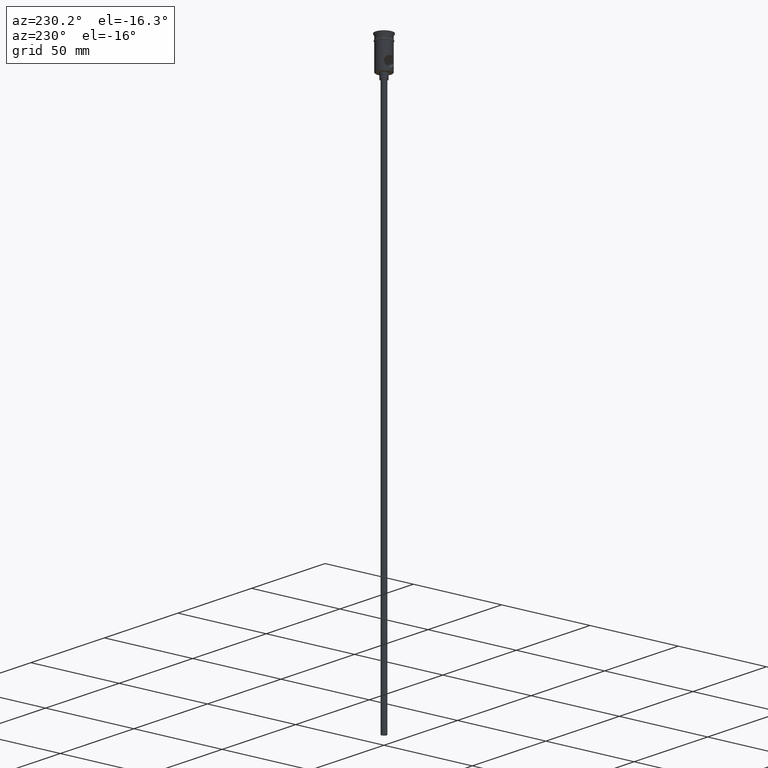
[diagram: clean part render]
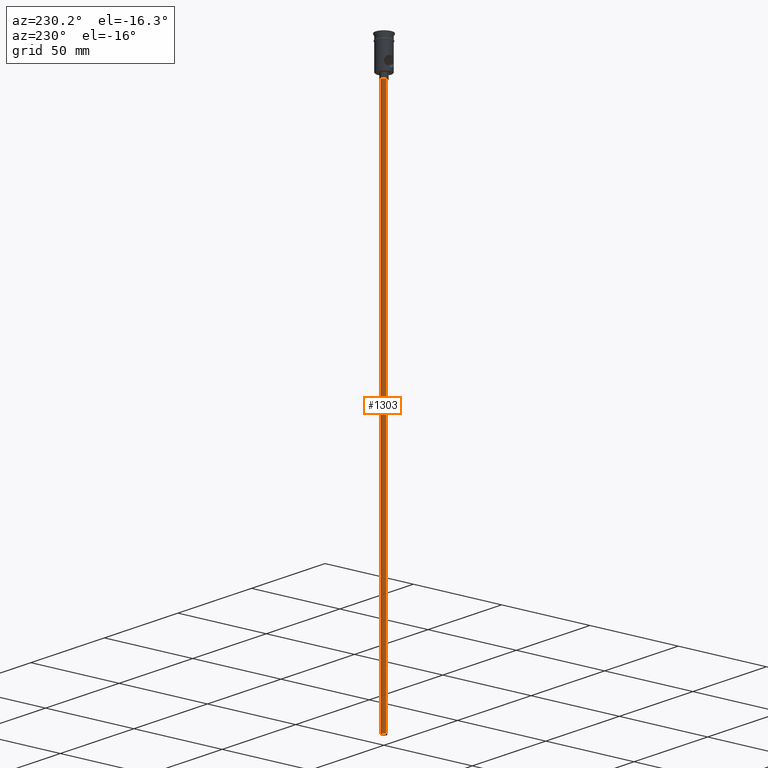
[diagram: same view with one face highlighted and labeled with its STEP entity id]
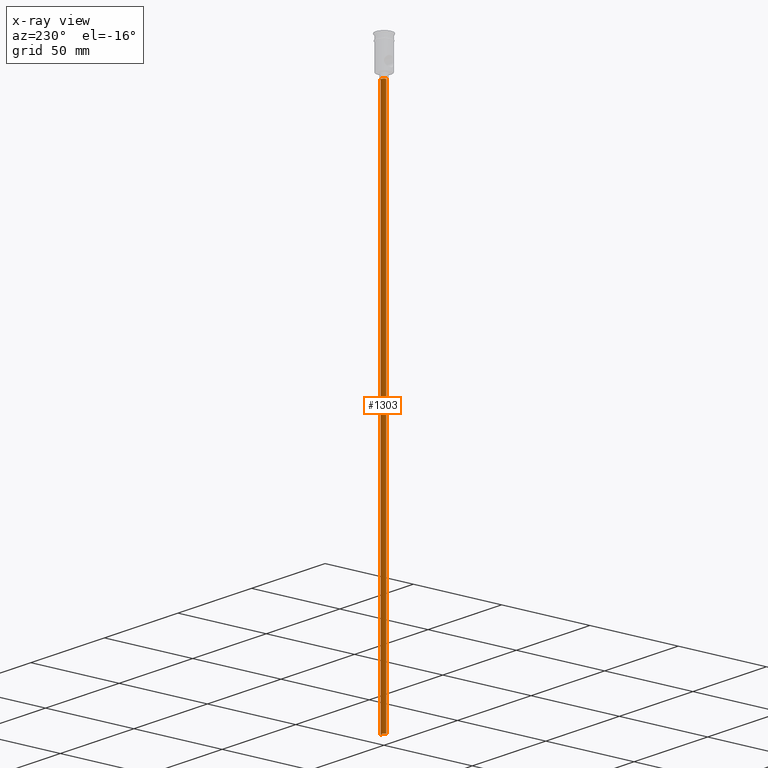
[diagram: x-ray of the same camera — body ghosted, the highlighted face saturated]
A machine part, auxiliary view. The second image highlights one B-rep face of the part: STEP entity #1303.
The next image is the same camera in x-ray: the body ghosted, the highlighted face saturated — about 0% of this face is hidden behind the body in this view.
In plain terms, the highlighted cylindrical surface (edge-blend (fillet) strip) has radius 1.5 mm, axis along (-0, -0, 1).
Its self-contained STEP definition (entity closure, byte-faithful):
#2 = CARTESIAN_POINT ( 'NONE',  ( -1.500000000000000222, 1.836970198721030181E-16, -318.0000000000000000 ) ) ;
#24 = DIRECTION ( 'NONE',  ( -1.000000000000000000, 0.000000000000000000, 0.000000000000000000 ) ) ;
#32 = CARTESIAN_POINT ( 'NONE',  ( 0.000000000000000000, 0.000000000000000000, -20.99999999999999645 ) ) ;
#61 = DIRECTION ( 'NONE',  ( -0.000000000000000000, -0.000000000000000000, 1.000000000000000000 ) ) ;
#67 = VECTOR ( 'NONE', #841, 1000.000000000000000 ) ;
#82 = CARTESIAN_POINT ( 'NONE',  ( -1.500000000000000222, 1.836970198721030181E-16, -20.99999999999999645 ) ) ;
#117 = CARTESIAN_POINT ( 'NONE',  ( 1.500000000000000222, 0.000000000000000000, -20.99999999999999645 ) ) ;
#128 = CARTESIAN_POINT ( 'NONE',  ( 0.000000000000000000, 0.000000000000000000, -318.0000000000000000 ) ) ;
#158 = ORIENTED_EDGE ( 'NONE', *, *, #722, .T. ) ;
#183 = EDGE_CURVE ( 'NONE', #1396, #553, #1288, .T. ) ;
#243 = DIRECTION ( 'NONE',  ( 0.000000000000000000, 0.000000000000000000, -1.000000000000000000 ) ) ;
#280 = EDGE_LOOP ( 'NONE', ( #492, #592, #158, #295 ) ) ;
#295 = ORIENTED_EDGE ( 'NONE', *, *, #828, .F. ) ;
#297 = CARTESIAN_POINT ( 'NONE',  ( 0.000000000000000000, 0.000000000000000000, -318.0000000000000000 ) ) ;
#381 = VECTOR ( 'NONE', #61, 1000.000000000000000 ) ;
#388 = LINE ( 'NONE', #1276, #67 ) ;
#492 = ORIENTED_EDGE ( 'NONE', *, *, #183, .F. ) ;
#553 = VERTEX_POINT ( 'NONE', #988 ) ;
#589 = AXIS2_PLACEMENT_3D ( 'NONE', #32, #890, #24 ) ;
#592 = ORIENTED_EDGE ( 'NONE', *, *, #1202, .T. ) ;
#594 = CARTESIAN_POINT ( 'NONE',  ( 1.500000000000000222, 0.000000000000000000, -318.0000000000000000 ) ) ;
#722 = EDGE_CURVE ( 'NONE', #1316, #1133, #1426, .T. ) ;
#783 = DIRECTION ( 'NONE',  ( -1.000000000000000000, 0.000000000000000000, 0.000000000000000000 ) ) ;
#828 = EDGE_CURVE ( 'NONE', #553, #1133, #949, .T. ) ;
#841 = DIRECTION ( 'NONE',  ( -0.000000000000000000, -0.000000000000000000, 1.000000000000000000 ) ) ;
#890 = DIRECTION ( 'NONE',  ( 0.000000000000000000, 0.000000000000000000, -1.000000000000000000 ) ) ;
#949 = LINE ( 'NONE', #594, #381 ) ;
#965 = DIRECTION ( 'NONE',  ( 1.000000000000000000, 0.000000000000000000, 0.000000000000000000 ) ) ;
#988 = CARTESIAN_POINT ( 'NONE',  ( 1.500000000000000222, 0.000000000000000000, -318.0000000000000000 ) ) ;
#1133 = VERTEX_POINT ( 'NONE', #117 ) ;
#1181 = CYLINDRICAL_SURFACE ( 'NONE', #1268, 1.500000000000000222 ) ;
#1202 = EDGE_CURVE ( 'NONE', #1396, #1316, #388, .T. ) ;
#1268 = AXIS2_PLACEMENT_3D ( 'NONE', #297, #1283, #965 ) ;
#1276 = CARTESIAN_POINT ( 'NONE',  ( -1.500000000000000222, 1.836970198721030181E-16, -318.0000000000000000 ) ) ;
#1283 = DIRECTION ( 'NONE',  ( -0.000000000000000000, -0.000000000000000000, 1.000000000000000000 ) ) ;
#1288 = CIRCLE ( 'NONE', #1328, 1.500000000000000222 ) ;
#1293 = FACE_OUTER_BOUND ( 'NONE', #280, .T. ) ;
#1303 = ADVANCED_FACE ( 'NONE', ( #1293 ), #1181, .T. ) ;
#1316 = VERTEX_POINT ( 'NONE', #82 ) ;
#1328 = AXIS2_PLACEMENT_3D ( 'NONE', #128, #243, #783 ) ;
#1396 = VERTEX_POINT ( 'NONE', #2 ) ;
#1426 = CIRCLE ( 'NONE', #589, 1.500000000000000222 ) ;